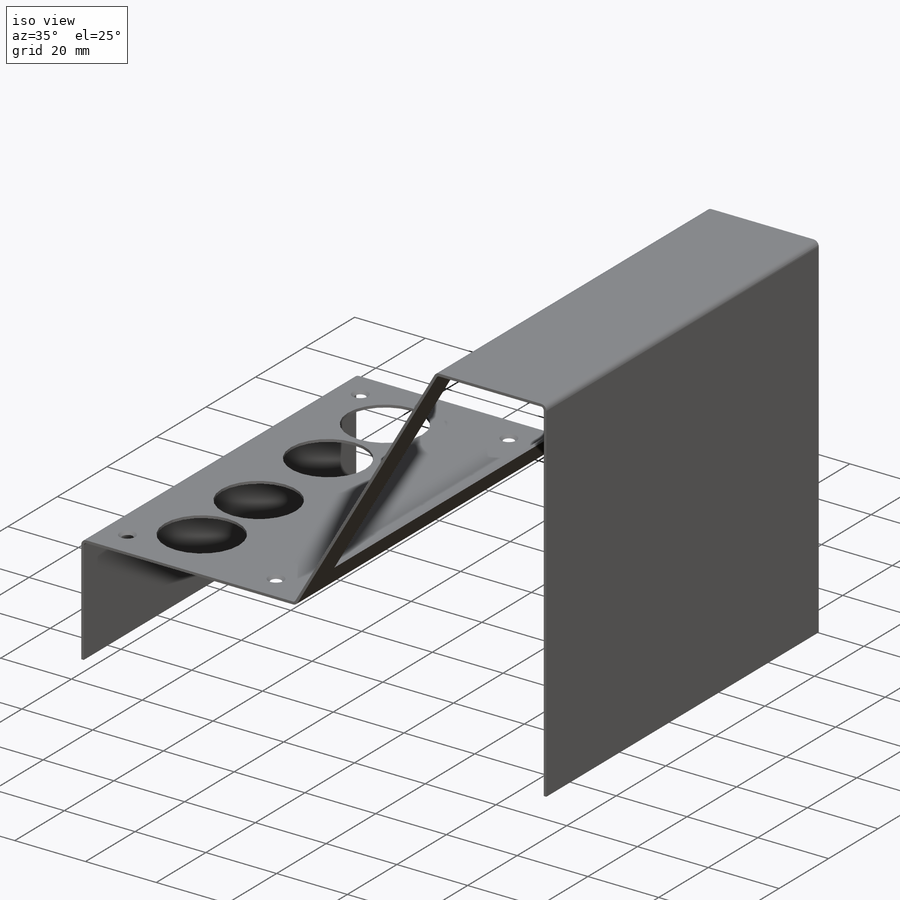
[diagram: iso view]
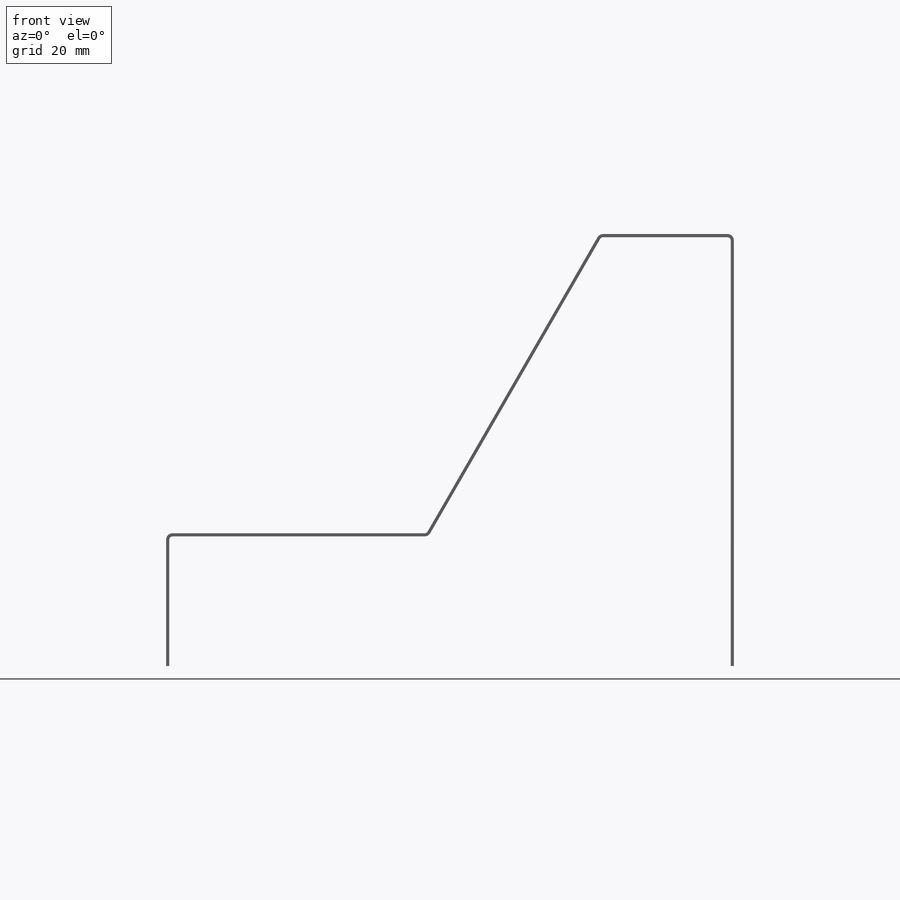
[diagram: front view]
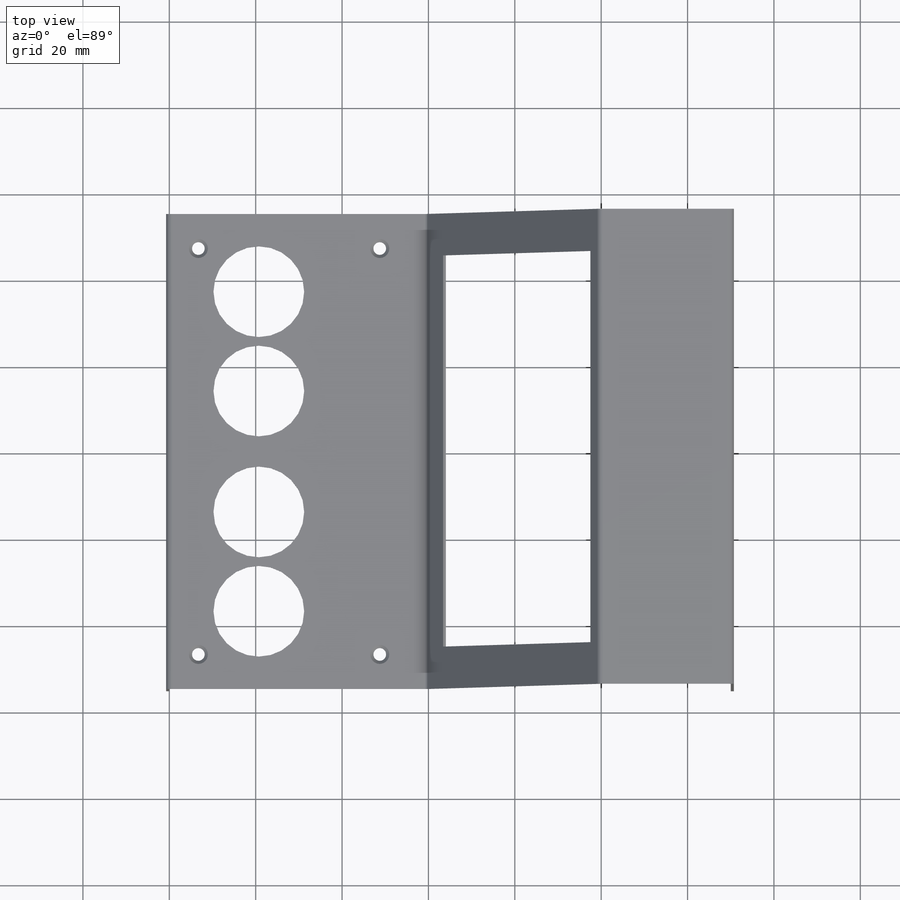
[diagram: top view]
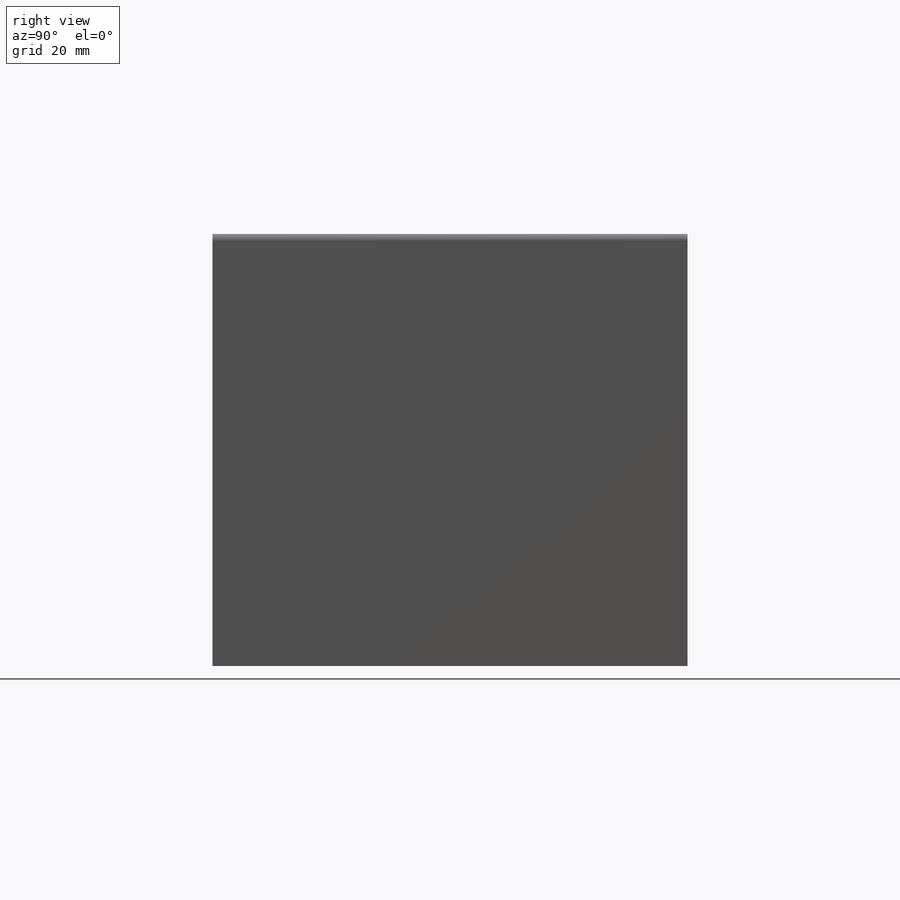
[diagram: right view]
SOLIDWORKS PART (.sldprt)
format: sldprt  version: not decoded by parser v0  size: 347,648 bytes
history: native  units: mm
features: sketch x15, sheet_metal_op x8, hole x4, cut_extrude x2, material x1 + 16 further entries (+12 scaffold rows collapsed; 4 parser-record rows omitted)
feature tree (62):
  scaffold x12  (default folders/planes/origin — collapsed)
  material  "Plain Carbon Steel"
  sketch  "Sketch1"  dims[c1.D1=60.0mm c1.D2=30.0mm c1.D3=80.0mm c1.D4=~71.411261mm c2.D4=~63.206983deg c3.D4=~1047.197551mm c3.D5=30.0mm c3.D6=~99.282032mm c3.D7=30.0mm c3.D1=0.7366mm c3.D2=0.5 c3.D3=0.0deg c4.D6=~28.64789deg]
  sheet_metal_op  "Base-Flange1"
  sheet_metal_op  "BaseBend2"
  sheet_metal_op  "BaseBend3"
  sheet_metal_op  "BaseBend4"
  sketch  "Sketch6"  dims[D1=21.0mm D3=21.0mm D2=14.0mm D4=23.0mm D5=20.0mm]
  cut_extrude  "Cut-Extrude2"  [1 undecoded]
  sketch  "Sketch7"  dims[D1=90.6mm D2=68.2mm D3=3.3mm]
  cut_extrude  "Cut-Extrude3"  [1 undecoded]
  hole  "CSK for M2 Flat Head Machine Screw1"  Diameter=2.4mm Depth=30.7366mm
  sketch  "Sketch9"  dims[D1=47.0mm D2=47.0mm D3=6.0mm D4=48.0mm]
  sketch  "Sketch8"  dims[hole-wizard template sketch: 40 standard entries collapsed; hole parameters kept: c6.Thru Hole Dia.=2.4mm c6.Thru Hole Depth=30.7366mm c6.Near C'Sink Dia.=4.4mm c6.Near C'Sink Angle=~1570.796327mm]  [1 undecoded]
  sketch  "Bend-Lines1"
  sketch  "Bounding-Box1"
  sheet_metal_op  "Sheet-Metal1"
  "Flat-Pattern1"
  sketch  "Bend-Lines2"
  sketch  "Bounding-Box2"
  parser-record x4  (decoder bookkeeping rows leaked as tree rows — omitted from the tree; the rows remain in map.json)
  "Flatten-<BaseBend2>1"
  "Flatten-<BaseBend3>1"
  "Flatten-<BaseBend4>1"
  hole  "Sheet-Metal3"  Diameter=0.7366mm
  sheet_metal_op  "Flat-Pattern1"
  sketch  "Bend-Lines2"
  sketch  "Bounding-Box2"
  "Flatten-<BaseBend1>1"
  "Flatten-<BaseBend2>1"
  "Flatten-<BaseBend3>1"
  "Flatten-<BaseBend4>1"
  hole  "Sheet-Metal4"  Diameter=0.7366mm
  sheet_metal_op  "Flat-Pattern1"
  sketch  "Bend-Lines2"
  sketch  "Bounding-Box2"
  "Flatten-<BaseBend1>1"
  "Flatten-<BaseBend2>1"
  "Flatten-<BaseBend3>1"
  "Flatten-<BaseBend4>1"
  hole  "Sheet-Metal5"  Diameter=0.7366mm
  sheet_metal_op  "Flat-Pattern1"
  sketch  "Bend-Lines2"
  sketch  "Bounding-Box2"
  "Flatten-<BaseBend1>1"
  "Flatten-<BaseBend2>1"
  "Flatten-<BaseBend3>1"
  "Flatten-<BaseBend4>1"
decode coverage: 9 of 29 modeling features carry decoded parameters; 16 rows unclassified (native names shown)
note: ~ marks probable driven/reference dimensions
note: 2 parameter values undecoded
note: suppression state not decoded; provenance and decode notes live in map.json
note: 1 required parameter value undecoded (feature->parameter linkage not recoverable at this tier; creation-order binding heuristic only, values carry confidence <= 0.55)
